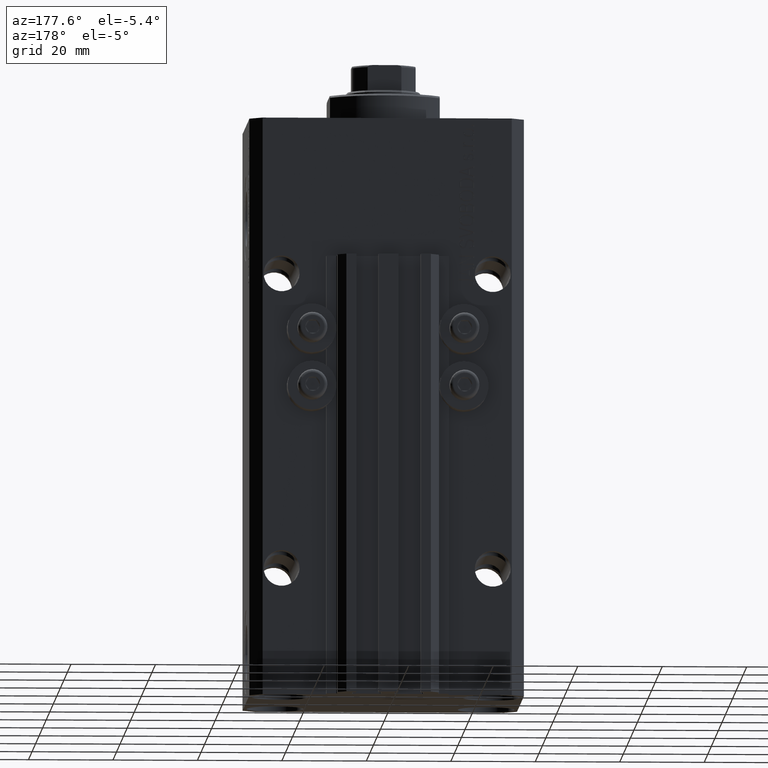
[diagram: clean part render]
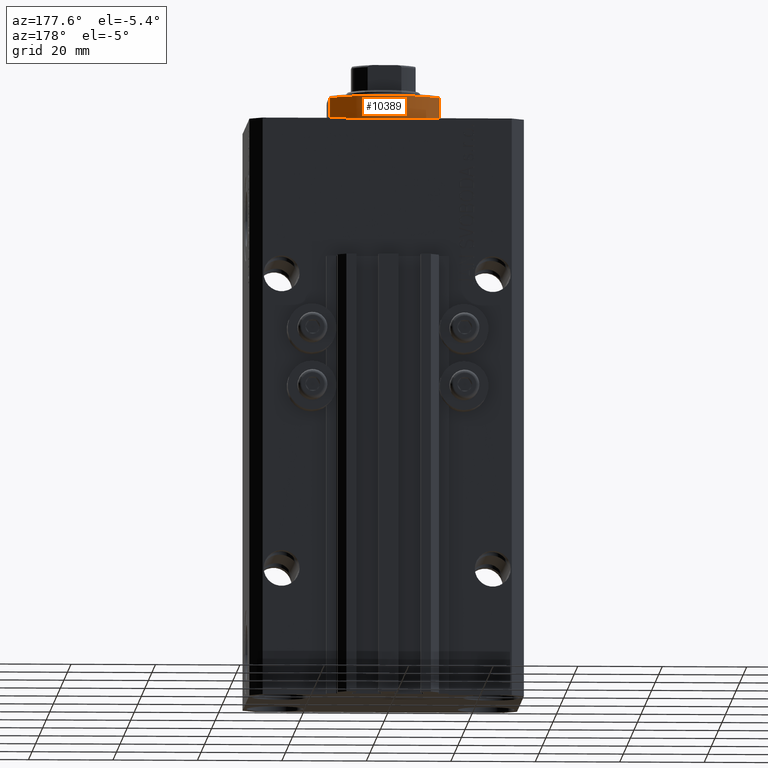
[diagram: same view with one face highlighted and labeled with its STEP entity id]
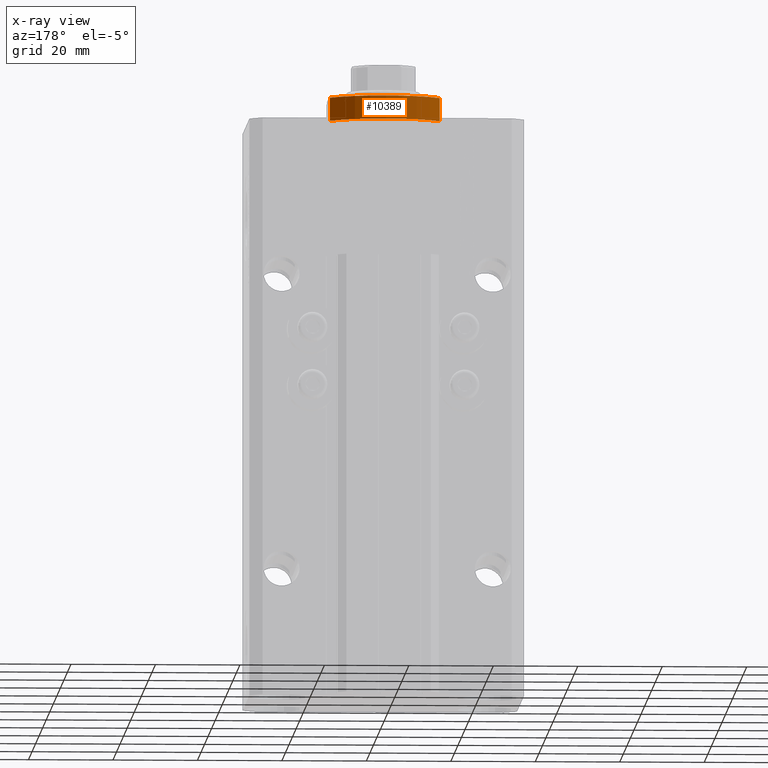
[diagram: x-ray of the same camera — body ghosted, the highlighted face saturated]
A machine part, auxiliary view. The second image highlights one B-rep face of the part: STEP entity #10389.
The next image is the same camera in x-ray: the body ghosted, the highlighted face saturated — about 0% of this face is hidden behind the body in this view.
In plain terms, the highlighted cylindrical surface (partial cylindrical patch) has radius 16 mm, axis along (0, 0, -1).
Its self-contained STEP definition (entity closure, byte-faithful):
#3374 = VERTEX_POINT ( 'NONE', #39787 ) ;
#4890 = DIRECTION ( 'NONE',  ( -0.000000000000000000, -0.000000000000000000, 1.000000000000000000 ) ) ;
#5547 = LINE ( 'NONE', #27511, #24188 ) ;
#5957 = DIRECTION ( 'NONE',  ( -0.000000000000000000, -0.000000000000000000, 1.000000000000000000 ) ) ;
#7736 = AXIS2_PLACEMENT_3D ( 'NONE', #20897, #42829, #31873 ) ;
#7744 = DIRECTION ( 'NONE',  ( -1.000000000000000000, 0.000000000000000000, 0.000000000000000000 ) ) ;
#8972 = DIRECTION ( 'NONE',  ( -0.000000000000000000, -0.000000000000000000, 1.000000000000000000 ) ) ;
#9633 = DIRECTION ( 'NONE',  ( 1.000000000000000000, 0.000000000000000000, 0.000000000000000000 ) ) ;
#9870 = CARTESIAN_POINT ( 'NONE',  ( 0.000000000000000000, 0.000000000000000000, -6.500000000000000000 ) ) ;
#10389 = ADVANCED_FACE ( 'NONE', ( #28402 ), #42308, .T. ) ;
#10968 = ORIENTED_EDGE ( 'NONE', *, *, #46117, .T. ) ;
#11644 = CARTESIAN_POINT ( 'NONE',  ( 0.000000000000000000, 0.000000000000000000, -6.000000000000023981 ) ) ;
#12672 = ORIENTED_EDGE ( 'NONE', *, *, #35582, .F. ) ;
#13412 = VERTEX_POINT ( 'NONE', #26449 ) ;
#14863 = ORIENTED_EDGE ( 'NONE', *, *, #41503, .T. ) ;
#18772 = CIRCLE ( 'NONE', #46054, 16.00000000000000000 ) ;
#19788 = CARTESIAN_POINT ( 'NONE',  ( -13.00000000000000000, 9.327379053088916905, -6.000000000000014211 ) ) ;
#20897 = CARTESIAN_POINT ( 'NONE',  ( 0.000000000000000000, 0.000000000000000000, -0.4999999999999995559 ) ) ;
#24188 = VECTOR ( 'NONE', #8972, 1000.000000000000000 ) ;
#26449 = CARTESIAN_POINT ( 'NONE',  ( 13.00000000000000000, 9.327379053088916905, -6.000000000000014211 ) ) ;
#26841 = LINE ( 'NONE', #31241, #45693 ) ;
#27511 = CARTESIAN_POINT ( 'NONE',  ( -13.00000000000000000, 9.327379053088813876, -6.500000000000000000 ) ) ;
#28402 = FACE_OUTER_BOUND ( 'NONE', #39601, .T. ) ;
#31241 = CARTESIAN_POINT ( 'NONE',  ( 13.00000000000000000, 9.327379053088813876, -6.500000000000000000 ) ) ;
#31723 = ORIENTED_EDGE ( 'NONE', *, *, #43652, .T. ) ;
#31873 = DIRECTION ( 'NONE',  ( 1.000000000000000000, -8.881784197001252323E-16, 0.000000000000000000 ) ) ;
#35582 = EDGE_CURVE ( 'NONE', #13412, #47449, #26841, .T. ) ;
#36221 = AXIS2_PLACEMENT_3D ( 'NONE', #9870, #5957, #9633 ) ;
#36583 = CIRCLE ( 'NONE', #7736, 16.00000000000000000 ) ;
#38517 = VERTEX_POINT ( 'NONE', #19788 ) ;
#39601 = EDGE_LOOP ( 'NONE', ( #12672, #10968, #31723, #14863 ) ) ;
#39787 = CARTESIAN_POINT ( 'NONE',  ( -13.00000000000000000, 9.327379053088815652, -0.4999999999999995559 ) ) ;
#41503 = EDGE_CURVE ( 'NONE', #3374, #47449, #36583, .T. ) ;
#42308 = CYLINDRICAL_SURFACE ( 'NONE', #36221, 16.00000000000000000 ) ;
#42829 = DIRECTION ( 'NONE',  ( -0.000000000000000000, -0.000000000000000000, -1.000000000000000000 ) ) ;
#43652 = EDGE_CURVE ( 'NONE', #38517, #3374, #5547, .T. ) ;
#44572 = DIRECTION ( 'NONE',  ( 0.000000000000000000, 0.000000000000000000, 1.000000000000000000 ) ) ;
#45254 = CARTESIAN_POINT ( 'NONE',  ( 13.00000000000000000, 9.327379053088815652, -0.4999999999999995559 ) ) ;
#45693 = VECTOR ( 'NONE', #4890, 1000.000000000000000 ) ;
#46054 = AXIS2_PLACEMENT_3D ( 'NONE', #11644, #44572, #7744 ) ;
#46117 = EDGE_CURVE ( 'NONE', #13412, #38517, #18772, .T. ) ;
#47449 = VERTEX_POINT ( 'NONE', #45254 ) ;